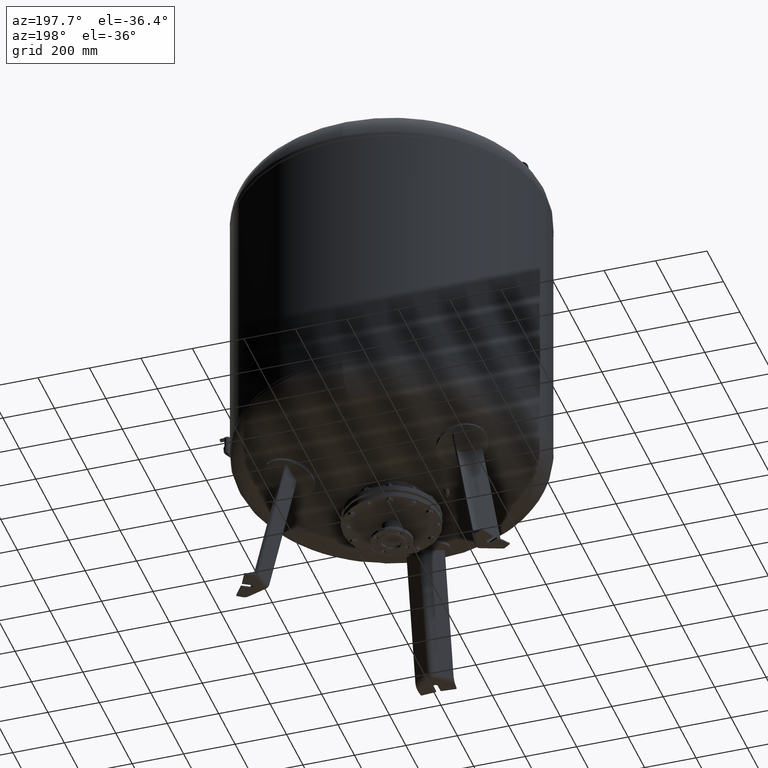
[diagram: clean part render]
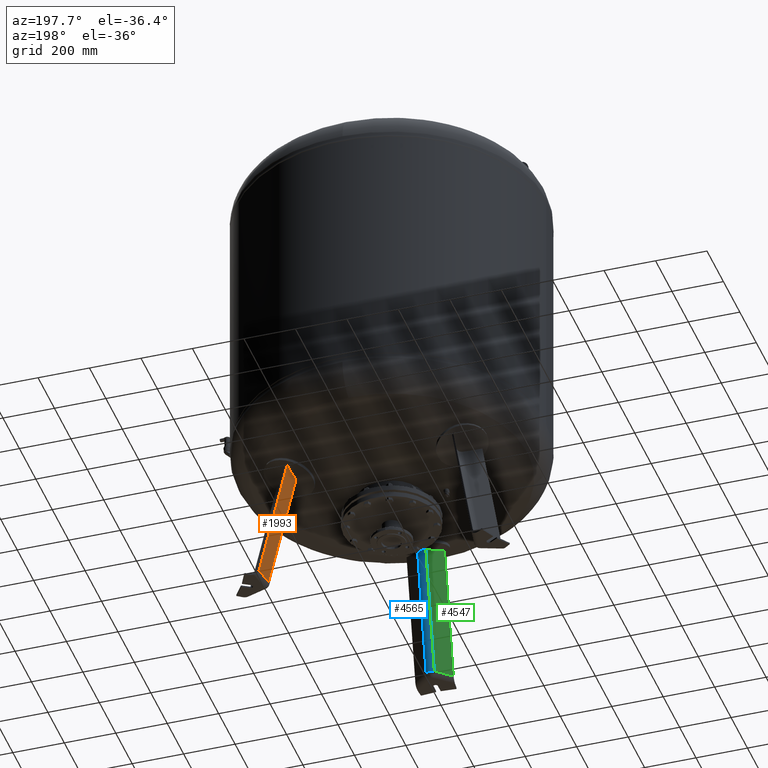
[diagram: same view with three faces highlighted in distinct colors, each labeled with its STEP entity id]
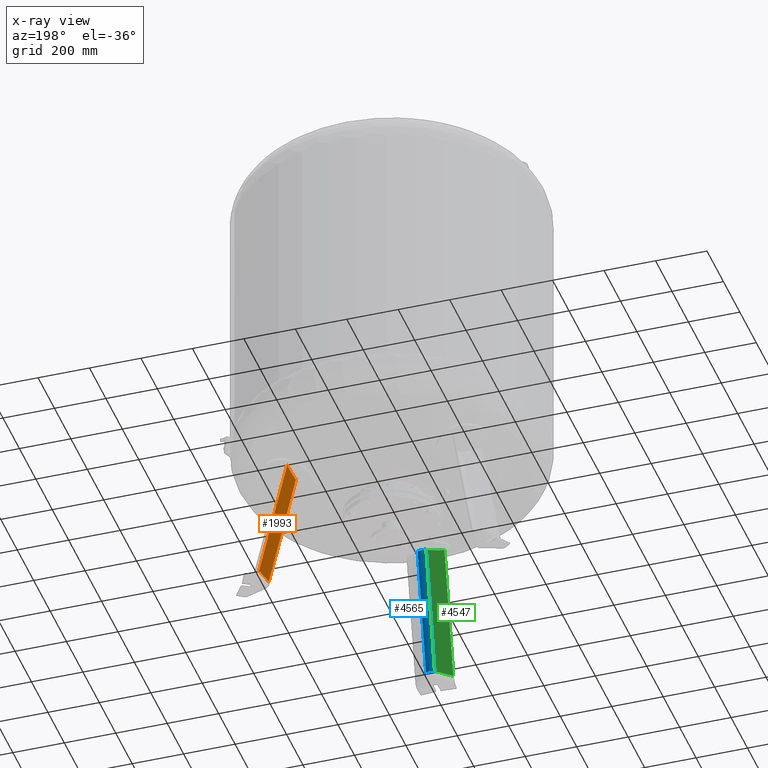
[diagram: x-ray of the same camera — body ghosted, the three highlighted faces saturated]
A machine part, auxiliary view with three faces highlighted in distinct colors.
The next image is the same camera in x-ray (body ghosted, the three faces saturated) — at least one of them is partly hidden behind the body in this view.
Their STEP definitions:

[orange] entity #1993 — the highlighted planar face has unit normal (-0.9697, 0.1854, -0.1588).
#1208=CARTESIAN_POINT('',(398.505553854202280,248.710057248237290,21.029948423057281));
#1209=VERTEX_POINT('',#1208);
#1250=CARTESIAN_POINT('',(412.743118968847450,323.167840413704650,21.029948423057284));
#1251=VERTEX_POINT('',#1250);
#1252=CARTESIAN_POINT('',(398.505553854202280,248.710057248237290,21.029948423057281));
#1253=DIRECTION('',(0.187813845079449,0.982204642422582,4.686537E-017));
#1254=VECTOR('',#1253,75.806792138366575);
#1255=LINE('',#1252,#1254);
#1256=EDGE_CURVE('',#1209,#1251,#1255,.T.);
#1742=CARTESIAN_POINT('',(309.243106825412270,197.174359427640750,505.942739782580020));
#1743=VERTEX_POINT('',#1742);
#1744=CARTESIAN_POINT('',(320.100983866293630,269.680878773943620,524.302688812935000));
#1745=VERTEX_POINT('',#1744);
#1746=CARTESIAN_POINT('',(116.635947881441950,19.973877625133696,1475.203780025492300));
#1747=DIRECTION('',(0.969740897595359,-0.185430570007245,0.158802063077709));
#1748=DIRECTION('',(0.180056805991956,0.103955845408880,-0.978147600733805));
#1749=AXIS2_PLACEMENT_3D('',#1746,#1747,#1748);
#1750=CIRCLE('',#1749,1003.974348556914600);
#1751=EDGE_CURVE('',#1743,#1745,#1750,.T.);
#1965=CARTESIAN_POINT('',(309.243106825412270,197.174359427640750,505.942739782580020));
#1966=DIRECTION('',(0.180056805991956,0.103955845408880,-0.978147600733806));
#1967=VECTOR('',#1966,495.746031576156330);
#1968=LINE('',#1965,#1967);
#1969=EDGE_CURVE('',#1743,#1209,#1968,.T.);
#1977=CARTESIAN_POINT('',(402.334414647440890,232.287882600950350,-21.527282742766886));
#1978=DIRECTION('',(-0.969740897595359,0.185430570007245,-0.158802063077709));
#1979=DIRECTION('',(0.180056805991956,0.103955845408880,-0.978147600733806));
#1980=AXIS2_PLACEMENT_3D('',#1977,#1978,#1979);
#1981=PLANE('',#1980);
#1982=ORIENTED_EDGE('',*,*,#1751,.T.);
#1983=CARTESIAN_POINT('',(412.743118968847450,323.167840413704650,21.029948423057284));
#1984=DIRECTION('',(-0.180056805991956,-0.103955845408880,0.978147600733806));
#1985=VECTOR('',#1984,514.516152789541020);
#1986=LINE('',#1983,#1985);
#1987=EDGE_CURVE('',#1251,#1745,#1986,.T.);
#1988=ORIENTED_EDGE('',*,*,#1987,.F.);
#1989=ORIENTED_EDGE('',*,*,#1256,.F.);
#1990=ORIENTED_EDGE('',*,*,#1969,.F.);
#1991=EDGE_LOOP('',(#1982,#1988,#1989,#1990));
#1992=FACE_OUTER_BOUND('',#1991,.T.);
#1993=ADVANCED_FACE('',(#1992),#1981,.T.);

[blue] entity #4565 — the highlighted cylindrical surface (edge-blend (fillet) strip) has radius 25 mm, axis along (0, 0.2079, 0.9781).
#3786=CARTESIAN_POINT('',(3.011497E-014,-463.694895977767430,19.802207729555999));
#3787=VERTEX_POINT('',#3786);
#3797=CARTESIAN_POINT('',(16.136450826554551,-469.470961811045530,21.029948423057281));
#3798=VERTEX_POINT('',#3797);
#3799=CARTESIAN_POINT('',(1.064933E-014,-488.148585996112560,24.999999999999993));
#3800=DIRECTION('',(-1.655020E-016,-0.207911690817760,-0.978147600733806));
#3801=DIRECTION('',(3.716286E-016,0.978147600733806,-0.207911690817760));
#3802=AXIS2_PLACEMENT_3D('',#3799,#3800,#3801);
#3803=CIRCLE('',#3802,24.999999999999996);
#3804=EDGE_CURVE('',#3787,#3798,#3803,.T.);
#3881=CARTESIAN_POINT('',(-16.136450826554526,-469.470961811045530,21.029948423057292));
#3882=VERTEX_POINT('',#3881);
#3929=CARTESIAN_POINT('',(1.064933E-014,-488.148585996112560,24.999999999999993));
#3930=DIRECTION('',(-1.655020E-016,-0.207911690817760,-0.978147600733806));
#3931=DIRECTION('',(3.716286E-016,0.978147600733806,-0.207911690817760));
#3932=AXIS2_PLACEMENT_3D('',#3929,#3930,#3931);
#3933=CIRCLE('',#3932,24.999999999999996);
#3934=EDGE_CURVE('',#3882,#3787,#3933,.T.);
#4331=CARTESIAN_POINT('',(16.136450826554654,-366.399566169852280,505.942739782580020));
#4332=VERTEX_POINT('',#4331);
#4342=CARTESIAN_POINT('',(-16.136450826554444,-366.398456764061390,505.947959126467590));
#4343=VERTEX_POINT('',#4342);
#4344=CARTESIAN_POINT('',(-16.136450826554444,-366.398456764061390,505.947959126467590));
#4345=CARTESIAN_POINT('',(-15.737400566579936,-366.076748518013970,505.839519935654040));
#4346=CARTESIAN_POINT('',(-15.327147909001727,-365.766480344501820,505.734934896781850));
#4347=CARTESIAN_POINT('',(-14.046721065585743,-364.859207342083210,505.429103824092690));
#4348=CARTESIAN_POINT('',(-13.143904252568687,-364.301561156435750,505.241116411709530));
#4349=CARTESIAN_POINT('',(-11.271425572263219,-363.302030248417340,504.904132145277800));
#4350=CARTESIAN_POINT('',(-10.300484546888351,-362.859462575826110,504.754905007621570));
#4351=CARTESIAN_POINT('',(-8.309953011693755,-362.097968578637620,504.498091049258280));
#4352=CARTESIAN_POINT('',(-7.290360884908889,-361.779046057881940,504.390505482463710));
#4353=CARTESIAN_POINT('',(-5.225144980184176,-361.269712235438310,504.218613051497190));
#4354=CARTESIAN_POINT('',(-4.179354266446703,-361.079270589673680,504.154295924989920));
#4355=CARTESIAN_POINT('',(-2.085342238614453,-360.827043975141580,504.068989992027010));
#4356=CARTESIAN_POINT('',(-1.037118907308644,-360.765274041493630,504.048006248182790));
#4357=CARTESIAN_POINT('',(1.038678789270924,-360.765345349864620,504.047670768673360));
#4358=CARTESIAN_POINT('',(2.088434223304574,-360.827373189681400,504.068378031877960));
#4359=CARTESIAN_POINT('',(4.185395383273503,-361.080473335127180,504.153252291123410));
#4360=CARTESIAN_POINT('',(5.232603134368776,-361.271530564476900,504.217414209798390));
#4361=CARTESIAN_POINT('',(7.300480784593006,-361.782427323971090,504.389117041742050));
#4362=CARTESIAN_POINT('',(8.321318171703672,-362.102297385734120,504.496668222473030));
#4363=CARTESIAN_POINT('',(10.314115908884709,-362.865984454112660,504.753530564510750));
#4364=CARTESIAN_POINT('',(11.286077877784916,-363.309797658262600,504.902840471794430));
#4365=CARTESIAN_POINT('',(13.160327133807668,-364.312075777572770,505.240100544597230));
#4366=CARTESIAN_POINT('',(14.063897342508563,-364.871226890810190,505.428281643566950));
#4367=CARTESIAN_POINT('',(15.338706105894477,-365.776279989160680,505.732921779836370));
#4368=CARTESIAN_POINT('',(15.743019211407953,-366.082360497986430,505.835954876961470));
#4369=CARTESIAN_POINT('',(16.136450826554654,-366.399566169852280,505.942739782580020));
#4370=B_SPLINE_CURVE_WITH_KNOTS('',3,(#4344,#4345,#4346,#4347,#4348,#4349,#4350,#4351,#4352,#4353,#4354,#4355,#4356,#4357,#4358,#4359,#4360,#4361,#4362,#4363,#4364,#4365,#4366,#4367,#4368,#4369),.UNSPECIFIED.,.F.,.U.,(4,2,2,2,2,2,2,2,2,2,2,2,4),(32.794903054826207,34.316215825106944,37.427572589502290,40.538929353897636,43.650286118292982,46.761642882688328,49.872999647083674,52.989036057429090,56.105072467774505,59.221108878119921,62.337145288465337,65.453181698810752,66.953203267256470),.UNSPECIFIED.);
#4371=EDGE_CURVE('',#4343,#4332,#4370,.T.);
#4537=CARTESIAN_POINT('',(-16.136450826554526,-469.470961811045530,21.029948423057292));
#4538=DIRECTION('',(1.648254E-016,0.207911690817760,0.978147600733806));
#4539=VECTOR('',#4538,495.751367523291150);
#4540=LINE('',#4537,#4539);
#4541=EDGE_CURVE('',#3882,#4343,#4540,.T.);
#4548=CARTESIAN_POINT('',(9.071145E-015,-497.964238536233840,-21.179014484433068));
#4549=DIRECTION('',(1.655020E-016,0.207911690817760,0.978147600733806));
#4550=DIRECTION('',(3.716286E-016,0.978147600733806,-0.207911690817760));
#4551=AXIS2_PLACEMENT_3D('',#4548,#4549,#4550);
#4552=CYLINDRICAL_SURFACE('',#4551,25.0);
#4553=ORIENTED_EDGE('',*,*,#4371,.T.);
#4554=CARTESIAN_POINT('',(16.136450826554654,-366.399566169852280,505.942739782580020));
#4555=DIRECTION('',(-2.078256E-016,-0.207911690817760,-0.978147600733806));
#4556=VECTOR('',#4555,495.746031576156330);
#4557=LINE('',#4554,#4556);
#4558=EDGE_CURVE('',#4332,#3798,#4557,.T.);
#4559=ORIENTED_EDGE('',*,*,#4558,.T.);
#4560=ORIENTED_EDGE('',*,*,#3804,.F.);
#4561=ORIENTED_EDGE('',*,*,#3934,.F.);
#4562=ORIENTED_EDGE('',*,*,#4541,.T.);
#4563=EDGE_LOOP('',(#4553,#4559,#4560,#4561,#4562));
#4564=FACE_OUTER_BOUND('',#4563,.T.);
#4565=ADVANCED_FACE('',(#4564),#4552,.T.);

[green] entity #4547 — the highlighted planar face has unit normal (-0.6455, 0.7471, -0.1588).
#3872=CARTESIAN_POINT('',(-73.500000000000000,-519.029946471096990,21.029948423057292));
#3873=VERTEX_POINT('',#3872);
#3881=CARTESIAN_POINT('',(-16.136450826554526,-469.470961811045530,21.029948423057292));
#3882=VERTEX_POINT('',#3881);
#3883=CARTESIAN_POINT('',(-73.500000000000000,-519.029946471096990,21.029948423057292));
#3884=DIRECTION('',(0.756707249513243,0.653753882232529,0.0));
#3885=VECTOR('',#3884,75.806792138366546);
#3886=LINE('',#3883,#3885);
#3887=EDGE_CURVE('',#3873,#3882,#3886,.T.);
#4342=CARTESIAN_POINT('',(-16.136450826554444,-366.398456764061390,505.947959126467590));
#4343=VERTEX_POINT('',#4342);
#4373=CARTESIAN_POINT('',(-73.499999999999886,-412.050926808483500,524.326665410275270));
#4374=VERTEX_POINT('',#4373);
#4375=CARTESIAN_POINT('',(41.213227367519892,-110.836984172192500,1475.169845689218200));
#4376=DIRECTION('',(0.645458033062181,-0.747104967402683,0.158802063077708));
#4377=DIRECTION('',(-5.092368E-017,-0.207911690817760,-0.978147600733805));
#4378=AXIS2_PLACEMENT_3D('',#4375,#4376,#4377);
#4379=CIRCLE('',#4378,1003.987906926445600);
#4380=EDGE_CURVE('',#4374,#4343,#4379,.T.);
#4518=CARTESIAN_POINT('',(-73.500000000000000,-519.029946471096990,21.029948423057292));
#4519=DIRECTION('',(2.209482E-016,0.207911690817760,0.978147600733806));
#4520=VECTOR('',#4519,514.540665038328710);
#4521=LINE('',#4518,#4520);
#4522=EDGE_CURVE('',#3873,#4374,#4521,.T.);
#4531=CARTESIAN_POINT('',(-73.500000000000000,-528.075765201900940,-21.527282742766886));
#4532=DIRECTION('',(-0.645458033062181,0.747104967402683,-0.158802063077709));
#4533=DIRECTION('',(-1.834170E-016,-0.207911690817760,-0.978147600733806));
#4534=AXIS2_PLACEMENT_3D('',#4531,#4532,#4533);
#4535=PLANE('',#4534);
#4536=ORIENTED_EDGE('',*,*,#4380,.T.);
#4537=CARTESIAN_POINT('',(-16.136450826554526,-469.470961811045530,21.029948423057292));
#4538=DIRECTION('',(1.648254E-016,0.207911690817760,0.978147600733806));
#4539=VECTOR('',#4538,495.751367523291150);
#4540=LINE('',#4537,#4539);
#4541=EDGE_CURVE('',#3882,#4343,#4540,.T.);
#4542=ORIENTED_EDGE('',*,*,#4541,.F.);
#4543=ORIENTED_EDGE('',*,*,#3887,.F.);
#4544=ORIENTED_EDGE('',*,*,#4522,.T.);
#4545=EDGE_LOOP('',(#4536,#4542,#4543,#4544));
#4546=FACE_OUTER_BOUND('',#4545,.T.);
#4547=ADVANCED_FACE('',(#4546),#4535,.T.);